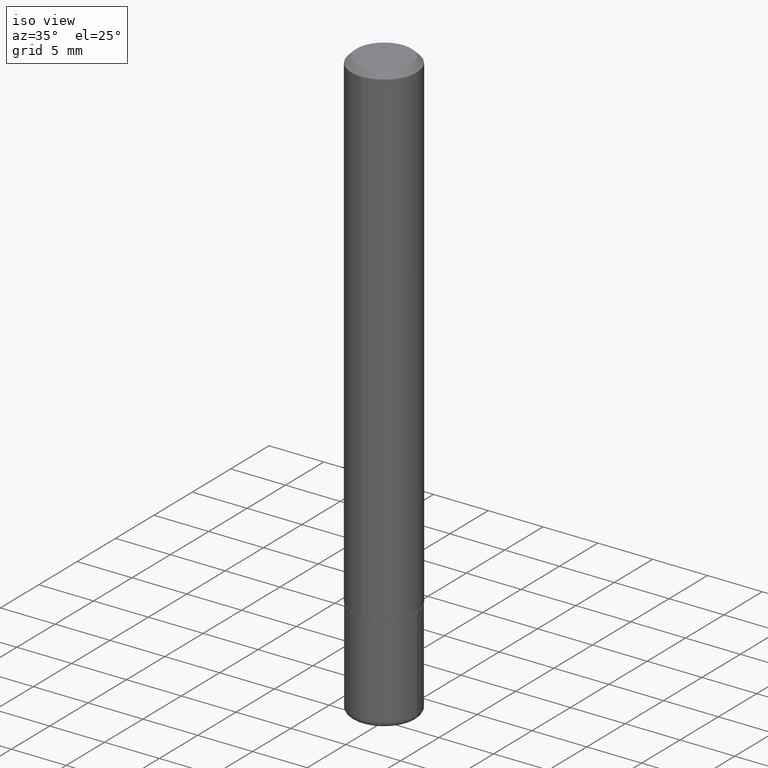
[diagram: clean part render]
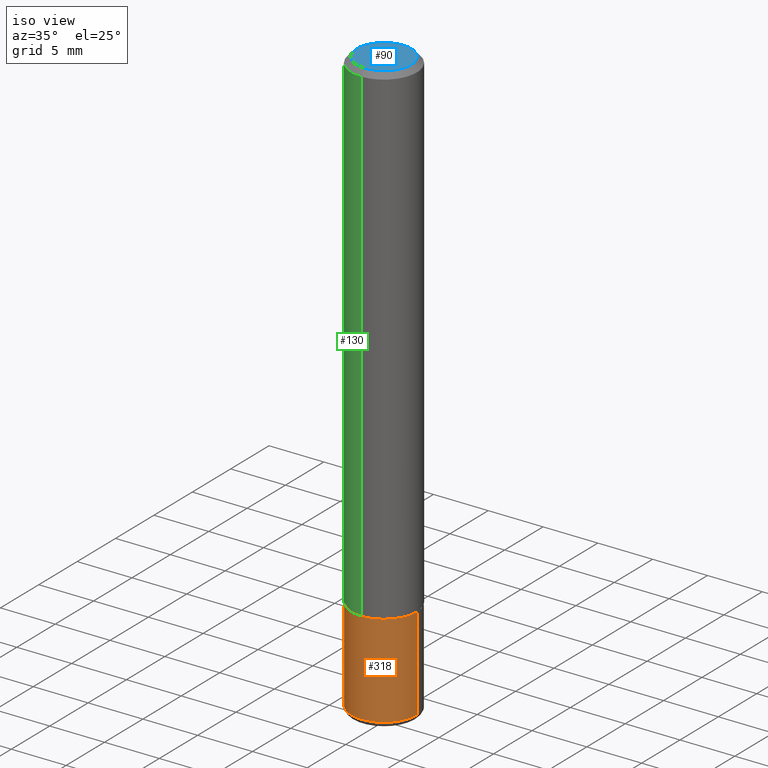
[diagram: same view with three faces highlighted in distinct colors, each labeled with its STEP entity id]
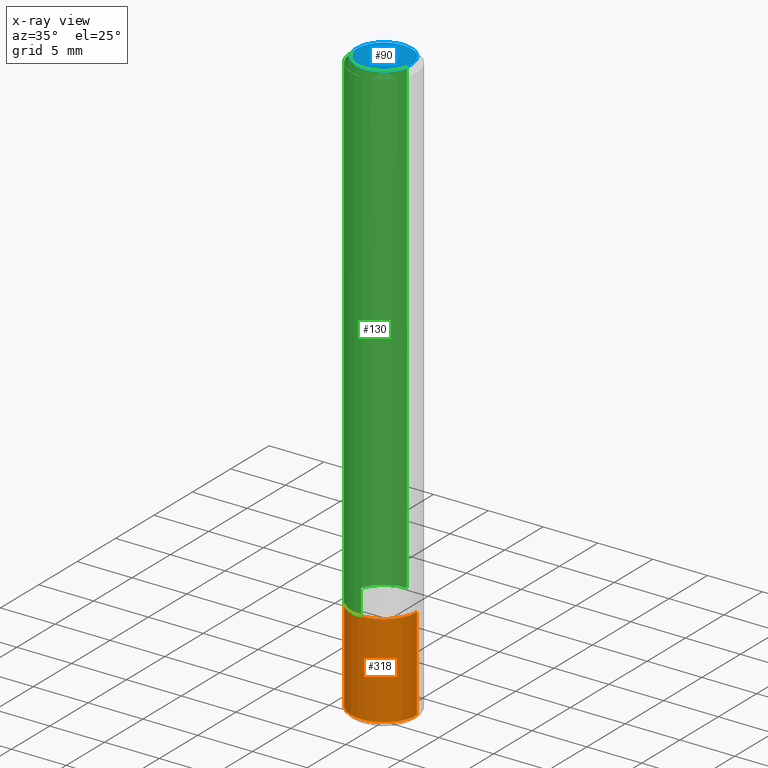
[diagram: x-ray of the same camera — body ghosted, the three highlighted faces saturated]
A machine part, iso view with three faces highlighted in distinct colors.
The next image is the same camera in x-ray (body ghosted, the three faces saturated) — at least one of them is partly hidden behind the body in this view.
Their STEP definitions:

[orange] entity #318 — the highlighted cylindrical surface (partial cylindrical patch) has radius 2.9997 mm, axis along (-0, 0, 1).
#8 = CARTESIAN_POINT ( 'NONE',  ( -0.1181000000000000383, 8.391509709326785915E-16, -5.809262341591045886E-30 ) ) ;
#9 = EDGE_LOOP ( 'NONE', ( #177, #320, #408, #301 ) ) ;
#12 = AXIS2_PLACEMENT_3D ( 'NONE', #257, #95, #348 ) ;
#20 = CIRCLE ( 'NONE', #12, 0.1181000000000000383 ) ;
#24 = FACE_OUTER_BOUND ( 'NONE', #9, .T. ) ;
#30 = VECTOR ( 'NONE', #385, 39.37007874015748143 ) ;
#67 = VERTEX_POINT ( 'NONE', #140 ) ;
#73 = DIRECTION ( 'NONE',  ( -2.445468806185136597E-29, 3.491481338843145583E-15, 1.000000000000000000 ) ) ;
#76 = VERTEX_POINT ( 'NONE', #405 ) ;
#91 = CARTESIAN_POINT ( 'NONE',  ( -0.1180999999999999828, -6.514956173072640404E-15, -2.106300000000000505 ) ) ;
#95 = DIRECTION ( 'NONE',  ( -2.445468806185136597E-29, 3.491481338843145583E-15, 1.000000000000000000 ) ) ;
#120 = VECTOR ( 'NONE', #284, 39.37007874015748143 ) ;
#122 = DIRECTION ( 'NONE',  ( 1.000000000000000000, -6.982962677686262766E-15, 0.000000000000000000 ) ) ;
#126 = CARTESIAN_POINT ( 'NONE',  ( 5.150890946467754134E-29, -7.354107144005318601E-15, -2.106300000000000505 ) ) ;
#133 = CIRCLE ( 'NONE', #418, 0.1181000000000000383 ) ;
#140 = CARTESIAN_POINT ( 'NONE',  ( 0.1180999999999999828, -8.178795036240066864E-15, -2.106300000000000505 ) ) ;
#161 = CARTESIAN_POINT ( 'NONE',  ( 0.1181000000000000383, -8.246878922347483612E-16, 5.758764772215001842E-30 ) ) ;
#168 = EDGE_CURVE ( 'NONE', #195, #67, #133, .T. ) ;
#177 = ORIENTED_EDGE ( 'NONE', *, *, #415, .F. ) ;
#191 = LINE ( 'NONE', #161, #30 ) ;
#195 = VERTEX_POINT ( 'NONE', #91 ) ;
#219 = DIRECTION ( 'NONE',  ( -2.445468806185136597E-29, 3.491481338843145583E-15, 1.000000000000000000 ) ) ;
#231 = CYLINDRICAL_SURFACE ( 'NONE', #382, 0.1181000000000000383 ) ;
#246 = CARTESIAN_POINT ( 'NONE',  ( 0.1181000000000000383, -7.010545380263150133E-15, -1.771700000000000053 ) ) ;
#257 = CARTESIAN_POINT ( 'NONE',  ( 4.332637083918206427E-29, -6.185857488028401081E-15, -1.771700000000000053 ) ) ;
#273 = VERTEX_POINT ( 'NONE', #246 ) ;
#284 = DIRECTION ( 'NONE',  ( -2.445468806185136877E-29, 3.491481338843145188E-15, 1.000000000000000000 ) ) ;
#301 = ORIENTED_EDGE ( 'NONE', *, *, #400, .F. ) ;
#318 = ADVANCED_FACE ( 'NONE', ( #24 ), #231, .T. ) ;
#319 = LINE ( 'NONE', #8, #120 ) ;
#320 = ORIENTED_EDGE ( 'NONE', *, *, #168, .T. ) ;
#348 = DIRECTION ( 'NONE',  ( 1.000000000000000000, -6.982962677686270655E-15, 0.000000000000000000 ) ) ;
#357 = CARTESIAN_POINT ( 'NONE',  ( 0.000000000000000000, 0.000000000000000000, 0.000000000000000000 ) ) ;
#375 = EDGE_CURVE ( 'NONE', #67, #273, #191, .T. ) ;
#382 = AXIS2_PLACEMENT_3D ( 'NONE', #357, #73, #384 ) ;
#384 = DIRECTION ( 'NONE',  ( 1.000000000000000000, -6.982962677686266711E-15, 4.876176775795935793E-29 ) ) ;
#385 = DIRECTION ( 'NONE',  ( -2.445468806185136877E-29, 3.491481338843145188E-15, 1.000000000000000000 ) ) ;
#400 = EDGE_CURVE ( 'NONE', #76, #273, #20, .T. ) ;
#405 = CARTESIAN_POINT ( 'NONE',  ( -0.1181000000000000383, -5.930831345084180855E-15, -1.771700000000000053 ) ) ;
#408 = ORIENTED_EDGE ( 'NONE', *, *, #375, .T. ) ;
#415 = EDGE_CURVE ( 'NONE', #195, #76, #319, .T. ) ;
#418 = AXIS2_PLACEMENT_3D ( 'NONE', #126, #219, #122 ) ;

[blue] entity #90 — the highlighted planar face has unit normal (0, -0, -1).
#7 = ORIENTED_EDGE ( 'NONE', *, *, #145, .T. ) ;
#36 = CARTESIAN_POINT ( 'NONE',  ( -5.748544850938659328E-45, 8.253427372768935186E-31, 2.357273996010603310E-16 ) ) ;
#59 = CARTESIAN_POINT ( 'NONE',  ( -5.748544850938659328E-45, 8.253427372768935186E-31, 2.357273996010603310E-16 ) ) ;
#63 = DIRECTION ( 'NONE',  ( -2.438640930442267577E-29, 3.501259245525487226E-15, 1.000000000000000000 ) ) ;
#84 = DIRECTION ( 'NONE',  ( 2.438640930442267017E-29, -3.501259245525487621E-15, -1.000000000000000000 ) ) ;
#90 = ADVANCED_FACE ( 'NONE', ( #204 ), #371, .F. ) ;
#145 = EDGE_CURVE ( 'NONE', #169, #324, #368, .T. ) ;
#149 = AXIS2_PLACEMENT_3D ( 'NONE', #36, #63, #200 ) ;
#150 = ORIENTED_EDGE ( 'NONE', *, *, #366, .T. ) ;
#158 = AXIS2_PLACEMENT_3D ( 'NONE', #59, #416, #309 ) ;
#169 = VERTEX_POINT ( 'NONE', #248 ) ;
#200 = DIRECTION ( 'NONE',  ( -6.982962677686265922E-15, -1.000000000000000000, 3.501259245525487621E-15 ) ) ;
#201 = CIRCLE ( 'NONE', #149, 0.09809999999999977072 ) ;
#204 = FACE_OUTER_BOUND ( 'NONE', #283, .T. ) ;
#213 = DIRECTION ( 'NONE',  ( 6.982962677686265922E-15, 1.000000000000000000, -3.501259245525487621E-15 ) ) ;
#248 = CARTESIAN_POINT ( 'NONE',  ( 7.548582654578848658E-16, 0.09809999999999977072, -1.077461323849892512E-16 ) ) ;
#262 = CARTESIAN_POINT ( 'NONE',  ( -7.416198335591016162E-16, -0.09809999999999977072, 5.792009315871098022E-16 ) ) ;
#270 = CARTESIAN_POINT ( 'NONE',  ( 6.850286386810210746E-16, 0.09809999999999977072, -2.256098321855192811E-16 ) ) ;
#283 = EDGE_LOOP ( 'NONE', ( #7, #150 ) ) ;
#309 = DIRECTION ( 'NONE',  ( -6.982962677686265922E-15, -1.000000000000000000, 3.501259245525487621E-15 ) ) ;
#321 = AXIS2_PLACEMENT_3D ( 'NONE', #270, #84, #213 ) ;
#324 = VERTEX_POINT ( 'NONE', #262 ) ;
#366 = EDGE_CURVE ( 'NONE', #324, #169, #201, .T. ) ;
#368 = CIRCLE ( 'NONE', #158, 0.09809999999999977072 ) ;
#371 = PLANE ( 'NONE',  #321 ) ;
#416 = DIRECTION ( 'NONE',  ( -2.438640930442267577E-29, 3.501259245525487226E-15, 1.000000000000000000 ) ) ;

[green] entity #130 — the highlighted cylindrical surface (partial cylindrical patch) has radius 2.9997 mm, axis along (-0, 0, 1).
#22 = FACE_OUTER_BOUND ( 'NONE', #31, .T. ) ;
#28 = CARTESIAN_POINT ( 'NONE',  ( 8.391509709327015671E-16, 0.1180999999999940708, -1.770700000000000385 ) ) ;
#31 = EDGE_LOOP ( 'NONE', ( #136, #134, #35, #173 ) ) ;
#32 = EDGE_CURVE ( 'NONE', #197, #100, #154, .T. ) ;
#34 = CARTESIAN_POINT ( 'NONE',  ( 8.391509709326791832E-16, 0.1181000000000001354, -4.134987168965605036E-16 ) ) ;
#35 = ORIENTED_EDGE ( 'NONE', *, *, #354, .T. ) ;
#54 = DIRECTION ( 'NONE',  ( -6.982962677686265922E-15, -1.000000000000000000, 3.505890868245044514E-15 ) ) ;
#60 = CARTESIAN_POINT ( 'NONE',  ( 4.318101495534122596E-29, -6.199679746051978993E-15, -1.770699999999999719 ) ) ;
#68 = DIRECTION ( 'NONE',  ( -2.438640930442267577E-29, 3.501259245525487621E-15, 1.000000000000000000 ) ) ;
#99 = LINE ( 'NONE', #346, #241 ) ;
#100 = VERTEX_POINT ( 'NONE', #333 ) ;
#109 = CARTESIAN_POINT ( 'NONE',  ( 4.877281860884553932E-31, -7.002518491051000929E-17, -0.02000000000000007674 ) ) ;
#118 = CARTESIAN_POINT ( 'NONE',  ( 0.000000000000000000, 0.000000000000000000, 0.000000000000000000 ) ) ;
#130 = ADVANCED_FACE ( 'NONE', ( #22 ), #276, .T. ) ;
#134 = ORIENTED_EDGE ( 'NONE', *, *, #258, .T. ) ;
#136 = ORIENTED_EDGE ( 'NONE', *, *, #362, .F. ) ;
#151 = CARTESIAN_POINT ( 'NONE',  ( -8.246878922347066502E-16, -0.1181000000000064498, -1.770699999999999275 ) ) ;
#154 = CIRCLE ( 'NONE', #386, 0.1181000000000000383 ) ;
#164 = VERTEX_POINT ( 'NONE', #151 ) ;
#173 = ORIENTED_EDGE ( 'NONE', *, *, #32, .F. ) ;
#189 = DIRECTION ( 'NONE',  ( -2.438640930442267577E-29, 3.501259245525487226E-15, 1.000000000000000000 ) ) ;
#197 = VERTEX_POINT ( 'NONE', #345 ) ;
#216 = AXIS2_PLACEMENT_3D ( 'NONE', #118, #244, #373 ) ;
#217 = DIRECTION ( 'NONE',  ( -6.982962677686265133E-15, -1.000000000000000000, 4.626330217890359081E-15 ) ) ;
#241 = VECTOR ( 'NONE', #68, 39.37007874015748143 ) ;
#244 = DIRECTION ( 'NONE',  ( -2.438640930442267577E-29, 3.501259245525487226E-15, 1.000000000000000000 ) ) ;
#258 = EDGE_CURVE ( 'NONE', #290, #164, #293, .T. ) ;
#269 = AXIS2_PLACEMENT_3D ( 'NONE', #60, #189, #217 ) ;
#276 = CYLINDRICAL_SURFACE ( 'NONE', #216, 0.1181000000000001354 ) ;
#290 = VERTEX_POINT ( 'NONE', #28 ) ;
#293 = CIRCLE ( 'NONE', #269, 0.1181000000000002603 ) ;
#316 = LINE ( 'NONE', #34, #351 ) ;
#333 = CARTESIAN_POINT ( 'NONE',  ( -8.102248135368175393E-16, -0.1181000000000001077, -0.01999999999999966388 ) ) ;
#345 = CARTESIAN_POINT ( 'NONE',  ( 8.246878922347486570E-16, 0.1180999999999999689, -0.02000000000000048961 ) ) ;
#346 = CARTESIAN_POINT ( 'NONE',  ( -8.246878922347489529E-16, -0.1181000000000001354, 4.134987168965605036E-16 ) ) ;
#351 = VECTOR ( 'NONE', #355, 39.37007874015748143 ) ;
#354 = EDGE_CURVE ( 'NONE', #164, #100, #99, .T. ) ;
#355 = DIRECTION ( 'NONE',  ( -2.438640930442267577E-29, 3.501259245525487621E-15, 1.000000000000000000 ) ) ;
#362 = EDGE_CURVE ( 'NONE', #290, #197, #316, .T. ) ;
#373 = DIRECTION ( 'NONE',  ( -6.982962677686265922E-15, -1.000000000000000000, 3.501259245525487226E-15 ) ) ;
#386 = AXIS2_PLACEMENT_3D ( 'NONE', #109, #402, #54 ) ;
#402 = DIRECTION ( 'NONE',  ( -2.438640930442267577E-29, 3.501259245525487226E-15, 1.000000000000000000 ) ) ;